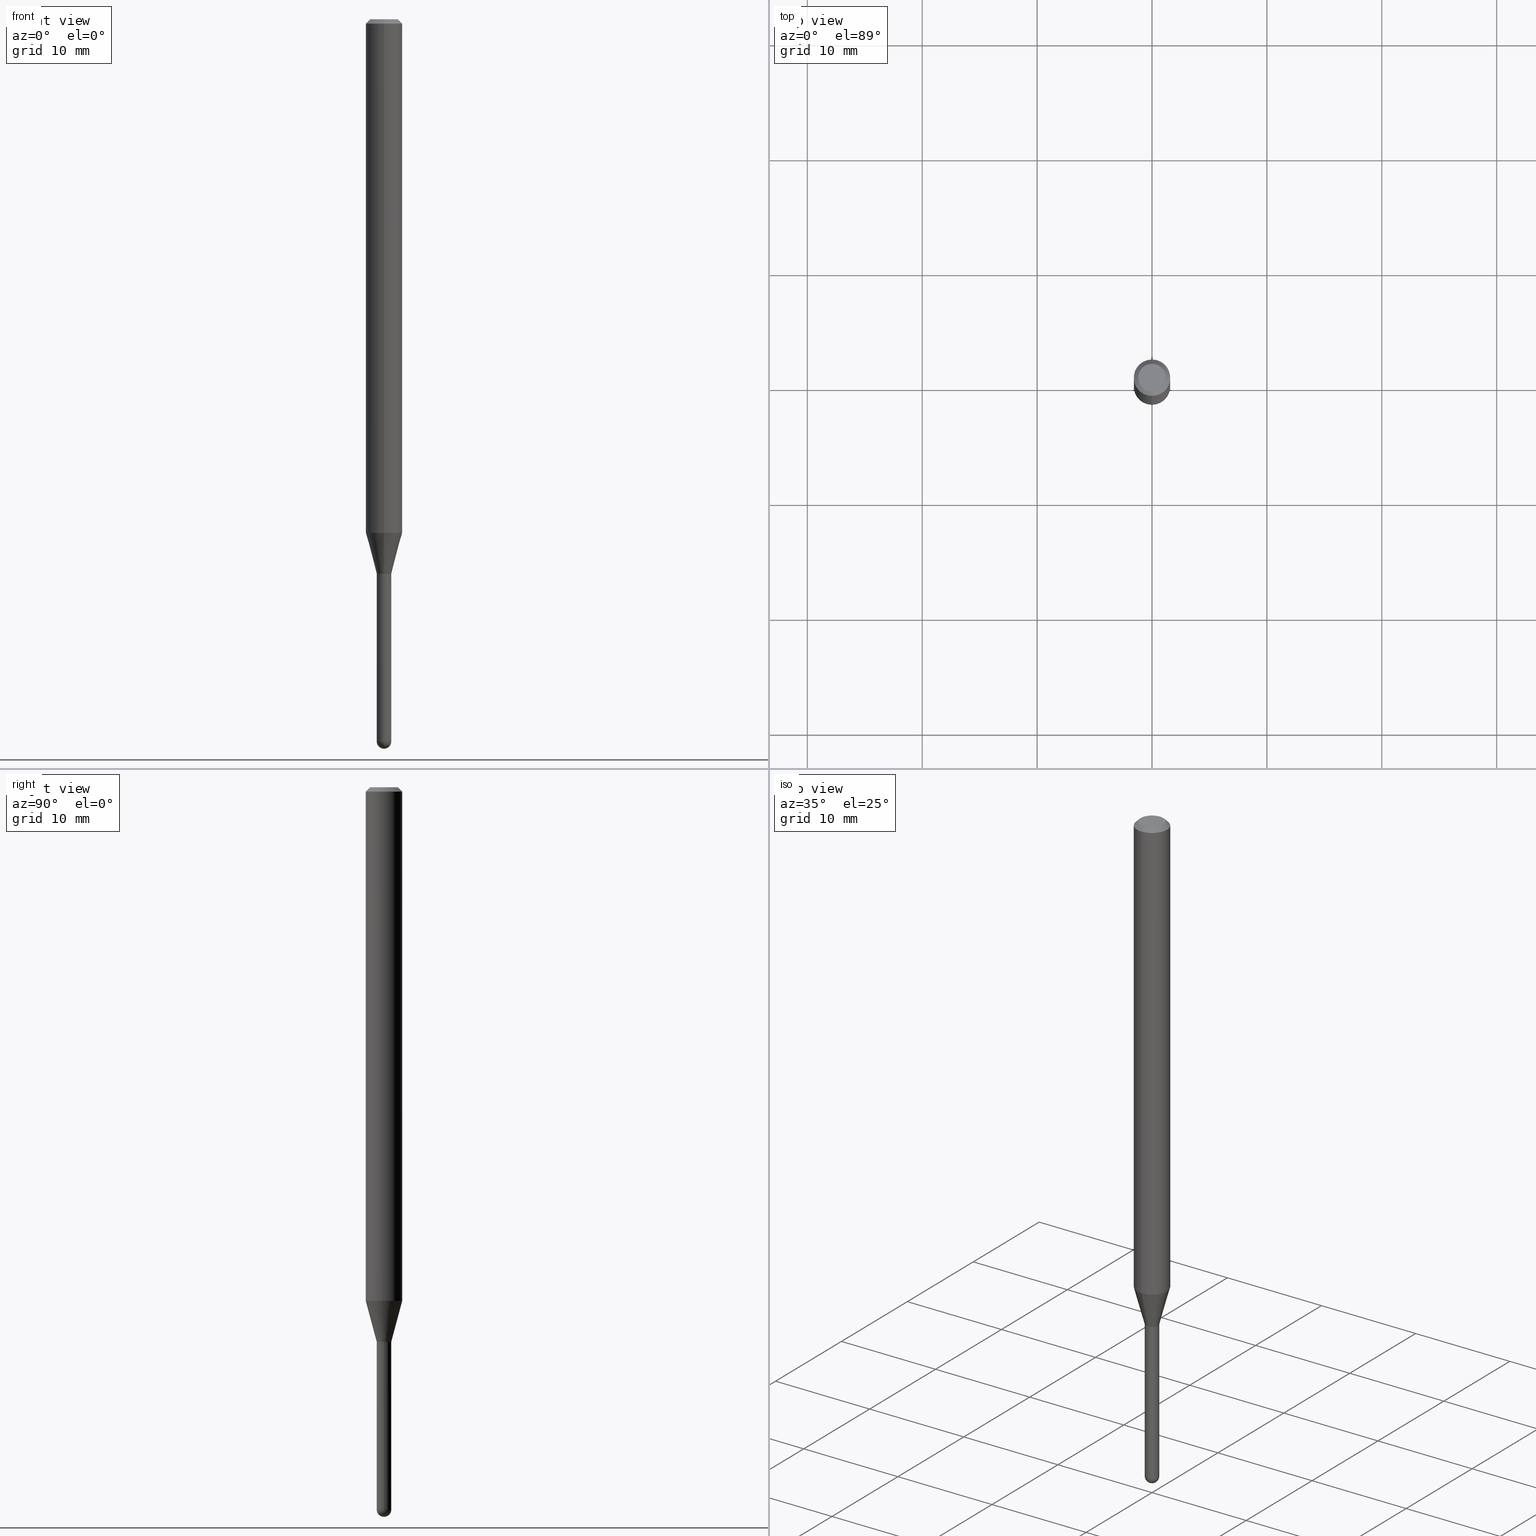
[diagram: canonical four-view strip — front | top / right | iso, engineering-drawing reading convention]
A machine part, canonical four-view strip (front | top / right | iso — engineering-drawing reading convention). The complete STEP part file that produces these views, byte-faithful:
ISO-10303-21;
HEADER;
FILE_DESCRIPTION (( 'STEP AP203' ),
    '1' );
FILE_NAME ('01565.STEP',
    '2024-03-07T19:40:07',
    ( '' ),
    ( '' ),
    'SwSTEP 2.0',
    'SolidWorks 2023',
    '' );
FILE_SCHEMA (( 'CONFIG_CONTROL_DESIGN' ));
ENDSEC;

DATA;
#1 = AXIS2_PLACEMENT_3D ( 'NONE', #136, #431, #210 ) ;
#2 = ORIENTED_EDGE ( 'NONE', *, *, #14, .F. ) ;
#3 = VERTEX_POINT ( 'NONE', #57 ) ;
#4 = EDGE_CURVE ( 'NONE', #310, #491, #73, .T. ) ;
#5 = EDGE_LOOP ( 'NONE', ( #341, #94, #170, #64 ) ) ;
#6 = EDGE_CURVE ( 'NONE', #398, #232, #460, .T. ) ;
#7 = CARTESIAN_POINT ( 'NONE',  ( 6.050397379585265558E-29, -8.644477930634654356E-15, -2.475000000000000089 ) ) ;
#8 = MANIFOLD_SOLID_BREP ( 'Body-Move/Copy2[1]', #276 ) ;
#9 = ORIENTED_EDGE ( 'NONE', *, *, #414, .F. ) ;
#10 = CARTESIAN_POINT ( 'NONE',  ( 6.052535295308213750E-29, -8.641416313636786609E-15, -2.475000000000000089 ) ) ;
#11 = DIRECTION ( 'NONE',  ( -2.445445075219074648E-29, 3.491515322937228955E-15, 1.000000000000000000 ) ) ;
#12 = ORIENTED_EDGE ( 'NONE', *, *, #183, .T. ) ;
#13 = DIRECTION ( 'NONE',  ( -6.982962677686265922E-15, -1.000000000000000000, 3.483106191921935554E-15 ) ) ;
#14 = EDGE_CURVE ( 'NONE', #3, #411, #352, .T. ) ;
#15 = ORIENTED_EDGE ( 'NONE', *, *, #24, .F. ) ;
#16 = DIRECTION ( 'NONE',  ( -2.445445075219074648E-29, 3.491515322937228561E-15, 1.000000000000000000 ) ) ;
#17 = DIRECTION ( 'NONE',  ( 2.445445075219074648E-29, -3.491515322937228955E-15, -1.000000000000000000 ) ) ;
#18 = CIRCLE ( 'NONE', #312, 0.04749999999999999362 ) ;
#19 = ORIENTED_EDGE ( 'NONE', *, *, #428, .F. ) ;
#20 =( NAMED_UNIT ( * ) SI_UNIT ( $, .STERADIAN. ) SOLID_ANGLE_UNIT ( ) );
#21 = VECTOR ( 'NONE', #373, 39.37007874015748143 ) ;
#22 = CARTESIAN_POINT ( 'NONE',  ( -1.710825856032670439E-16, -0.02450000000000663453, -1.900000000000000133 ) ) ;
#23 = ORIENTED_EDGE ( 'NONE', *, *, #269, .F. ) ;
#24 = EDGE_CURVE ( 'NONE', #173, #482, #18, .T. ) ;
#25 = CARTESIAN_POINT ( 'NONE',  ( 1.758593271006709773E-16, 0.02449999999999336736, -1.900000000000000133 ) ) ;
#26 = VERTEX_POINT ( 'NONE', #335 ) ;
#27 = CYLINDRICAL_SURFACE ( 'NONE', #447, 0.02500000000000000486 ) ;
#28 = APPLICATION_PROTOCOL_DEFINITION ( 'international standard', 'config_control_design', 1994, #165 ) ;
#29 = CARTESIAN_POINT ( 'NONE',  ( 4.646345642916242448E-29, -6.633879113580735686E-15, -1.900000000000000133 ) ) ;
#30 = CARTESIAN_POINT ( 'NONE',  ( 0.000000000000000000, 0.000000000000000000, 0.000000000000000000 ) ) ;
#31 = EDGE_CURVE ( 'NONE', #124, #472, #153, .T. ) ;
#32 = CONICAL_SURFACE ( 'NONE', #263, 0.06250000000000000000, 0.7853981633974483900 ) ;
#33 = CARTESIAN_POINT ( 'NONE',  ( 0.000000000000000000, 0.000000000000000000, 0.000000000000000000 ) ) ;
#34 = EDGE_LOOP ( 'NONE', ( #278, #249, #227, #58 ) ) ;
#35 = ADVANCED_FACE ( 'NONE', ( #295 ), #291, .F. ) ;
#36 = CARTESIAN_POINT ( 'NONE',  ( 3.668167612828614459E-31, -5.237272984405846564E-17, -0.01500000000000000812 ) ) ;
#37 = CIRCLE ( 'NONE', #95, 0.02500000000000000486 ) ;
#38 = PRODUCT_DEFINITION_SHAPE ( 'NONE', 'NONE',  #184 ) ;
#39 = EDGE_CURVE ( 'NONE', #382, #307, #504, .T. ) ;
#40 = ADVANCED_FACE ( 'NONE', ( #388 ), #71, .T. ) ;
#41 = VECTOR ( 'NONE', #386, 39.37007874015748143 ) ;
#42 = ORIENTED_EDGE ( 'NONE', *, *, #209, .F. ) ;
#43 = ORIENTED_EDGE ( 'NONE', *, *, #4, .T. ) ;
#44 = DIRECTION ( 'NONE',  ( -1.807323732225381415E-15, -0.2588190451025255134, 0.9659258262890669799 ) ) ;
#45 = ORIENTED_EDGE ( 'NONE', *, *, #237, .T. ) ;
#46 = DIRECTION ( 'NONE',  ( 1.000000000000000000, -6.982962677686253300E-15, 0.000000000000000000 ) ) ;
#47 = ADVANCED_FACE ( 'NONE', ( #225 ), #421, .F. ) ;
#48 = DIRECTION ( 'NONE',  ( -7.105427357601001070E-15, -1.000000000000000000, 0.000000000000000000 ) ) ;
#49 = EDGE_LOOP ( 'NONE', ( #479, #109, #52, #160 ) ) ;
#50 = CARTESIAN_POINT ( 'NONE',  ( 2.166347736452363345E-46, -3.093030546170088735E-32, -8.858705347362141833E-18 ) ) ;
#51 = APPROVAL_ROLE ( '' ) ;
#52 = ORIENTED_EDGE ( 'NONE', *, *, #205, .T. ) ;
#53 = VECTOR ( 'NONE', #456, 39.37007874015748143 ) ;
#54 = FACE_OUTER_BOUND ( 'NONE', #120, .T. ) ;
#55 = APPROVAL_PERSON_ORGANIZATION ( #194, #157, #451 ) ;
#56 = COORDINATED_UNIVERSAL_TIME_OFFSET ( 5, 0, .BEHIND. ) ;
#57 = CARTESIAN_POINT ( 'NONE',  ( 3.108624468950883822E-16, 0.02499999999999329148, -1.900000000000000133 ) ) ;
#58 = ORIENTED_EDGE ( 'NONE', *, *, #430, .F. ) ;
#59 = DIRECTION ( 'NONE',  ( -2.445445075219074648E-29, 3.491515322937228955E-15, 1.000000000000000000 ) ) ;
#60 = CARTESIAN_POINT ( 'NONE',  ( -4.287811248607203282E-16, -0.06250000000000005551, -0.01499999999999979128 ) ) ;
#61 = ORIENTED_EDGE ( 'NONE', *, *, #323, .F. ) ;
#62 = CC_DESIGN_PERSON_AND_ORGANIZATION_ASSIGNMENT ( #507, #158, ( #147 ) ) ;
#63 = FACE_OUTER_BOUND ( 'NONE', #49, .T. ) ;
#64 = ORIENTED_EDGE ( 'NONE', *, *, #205, .F. ) ;
#65 = AXIS2_PLACEMENT_3D ( 'NONE', #29, #233, #303 ) ;
#66 = CARTESIAN_POINT ( 'NONE',  ( 6.052535295308213750E-29, -8.641416313636786609E-15, -2.475000000000000089 ) ) ;
#67 = CARTESIAN_POINT ( 'NONE',  ( -1.776356839399643140E-16, -0.02500000000000861256, -2.475000000000000089 ) ) ;
#68 = PERSON_AND_ORGANIZATION ( #489, #105 ) ;
#69 = DIRECTION ( 'NONE',  ( -2.445445075219074648E-29, 3.491515322937228955E-15, 1.000000000000000000 ) ) ;
#70 = EDGE_CURVE ( 'NONE', #26, #231, #83, .T. ) ;
#71 = CYLINDRICAL_SURFACE ( 'NONE', #201, 0.06250000000000000000 ) ;
#72 = DIRECTION ( 'NONE',  ( -2.445468806185136597E-29, 3.491481338843145583E-15, 1.000000000000000000 ) ) ;
#73 = CIRCLE ( 'NONE', #337, 0.02499999999999993894 ) ;
#74 = CIRCLE ( 'NONE', #134, 0.02500000000000000486 ) ;
#75 = DIRECTION ( 'NONE',  ( -2.445445075219074648E-29, 3.491515322937228561E-15, 1.000000000000000000 ) ) ;
#76 = CARTESIAN_POINT ( 'NONE',  ( 4.646345642916242448E-29, -6.633879113580735686E-15, -1.900000000000000133 ) ) ;
#77 = AXIS2_PLACEMENT_3D ( 'NONE', #36, #508, #462 ) ;
#78 = PERSON_AND_ORGANIZATION ( #489, #105 ) ;
#79 = ADVANCED_FACE ( 'NONE', ( #195 ), #372, .T. ) ;
#80 = EDGE_CURVE ( 'NONE', #173, #26, #453, .T. ) ;
#81 = COORDINATED_UNIVERSAL_TIME_OFFSET ( 5, 0, .BEHIND. ) ;
#82 = CARTESIAN_POINT ( 'NONE',  ( 4.646345642916242448E-29, -6.633879113580735686E-15, -1.900000000000000133 ) ) ;
#83 = CIRCLE ( 'NONE', #112, 0.06250000000000000000 ) ;
#84 = DATE_TIME_ROLE ( 'classification_date' ) ;
#85 = EDGE_LOOP ( 'NONE', ( #370, #377, #475, #99 ) ) ;
#86 = CARTESIAN_POINT ( 'NONE',  ( -0.02500000000000000486, -7.459979744779357409E-15, -2.475000000000000089 ) ) ;
#87 = ORIENTED_EDGE ( 'NONE', *, *, #271, .F. ) ;
#88 = ORIENTED_EDGE ( 'NONE', *, *, #209, .T. ) ;
#89 = DIRECTION ( 'NONE',  ( -2.445445075219074648E-29, 3.491515322937228955E-15, 1.000000000000000000 ) ) ;
#90 = CARTESIAN_POINT ( 'NONE',  ( 6.050397379585265558E-29, -8.644477930634654356E-15, -2.475000000000000089 ) ) ;
#91 = CARTESIAN_POINT ( 'NONE',  ( 6.052535295308213750E-29, -8.641416313636786609E-15, -2.475000000000000089 ) ) ;
#92 = AXIS2_PLACEMENT_3D ( 'NONE', #326, #364, #253 ) ;
#93 = CALENDAR_DATE ( 2024, 7, 3 ) ;
#94 = ORIENTED_EDGE ( 'NONE', *, *, #503, .T. ) ;
#95 = AXIS2_PLACEMENT_3D ( 'NONE', #66, #450, #101 ) ;
#96 = CARTESIAN_POINT ( 'NONE',  ( 6.112603057601368517E-29, -8.730234155606798816E-15, -2.500000000000000000 ) ) ;
#97 = DESIGN_CONTEXT ( 'detailed design', #151, 'design' ) ;
#98 =( CONVERSION_BASED_UNIT ( 'INCH', #449 ) LENGTH_UNIT ( ) NAMED_UNIT ( #441 ) );
#99 = ORIENTED_EDGE ( 'NONE', *, *, #365, .F. ) ;
#100 = ADVANCED_FACE ( 'NONE', ( #63 ), #187, .T. ) ;
#101 = DIRECTION ( 'NONE',  ( 1.000000000000000000, -6.982962677686253300E-15, 0.000000000000000000 ) ) ;
#102 = DIRECTION ( 'NONE',  ( -4.851104656540964275E-15, -0.7071067811865500152, -0.7071067811865450192 ) ) ;
#103 = DIRECTION ( 'NONE',  ( 6.982962677686265922E-15, 1.000000000000000000, -3.491515322937228561E-15 ) ) ;
#104 = VECTOR ( 'NONE', #510, 39.37007874015748143 ) ;
#105 = ORGANIZATION ( 'UNSPECIFIED', 'UNSPECIFIED', '' ) ;
#106 = MECHANICAL_CONTEXT ( 'NONE', #165, 'mechanical' ) ;
#107 = ADVANCED_FACE ( 'NONE', ( #296 ), #32, .T. ) ;
#108 = LINE ( 'NONE', #267, #320 ) ;
#109 = ORIENTED_EDGE ( 'NONE', *, *, #414, .T. ) ;
#110 = DIRECTION ( 'NONE',  ( 0.000000000000000000, 0.000000000000000000, 1.000000000000000000 ) ) ;
#111 = DIRECTION ( 'NONE',  ( -6.982962677686265922E-15, -1.000000000000000000, 3.483106191921935554E-15 ) ) ;
#112 = AXIS2_PLACEMENT_3D ( 'NONE', #148, #193, #111 ) ;
#113 = CARTESIAN_POINT ( 'NONE',  ( -1.745740669421102729E-16, -0.02500000000000664538, -1.899500000000000410 ) ) ;
#114 = DIRECTION ( 'NONE',  ( -2.445445075219074648E-29, 3.491515322937228561E-15, 1.000000000000000000 ) ) ;
#115 = DIRECTION ( 'NONE',  ( -2.445445075219074648E-29, 3.491515322937228955E-15, 1.000000000000000000 ) ) ;
#116 = CIRCLE ( 'NONE', #409, 0.02500000000000000486 ) ;
#117 = EDGE_CURVE ( 'NONE', #324, #484, #277, .T. ) ;
#118 = CALENDAR_DATE ( 2024, 7, 3 ) ;
#119 = CC_DESIGN_PERSON_AND_ORGANIZATION_ASSIGNMENT ( #177, #248, ( #506 ) ) ;
#120 = EDGE_LOOP ( 'NONE', ( #325, #43, #403, #405 ) ) ;
#121 = DIRECTION ( 'NONE',  ( -1.000000000000000000, 7.105427357601001070E-15, -4.926315508542082329E-29 ) ) ;
#122 = FACE_OUTER_BOUND ( 'NONE', #481, .T. ) ;
#123 = AXIS2_PLACEMENT_3D ( 'NONE', #346, #416, #420 ) ;
#124 = VERTEX_POINT ( 'NONE', #300 ) ;
#125 = DIRECTION ( 'NONE',  ( -2.445468806185136877E-29, 3.491481338843145188E-15, 1.000000000000000000 ) ) ;
#126 = EDGE_CURVE ( 'NONE', #3, #472, #229, .T. ) ;
#127 = PRODUCT_RELATED_PRODUCT_CATEGORY ( 'detail', '', ( #359 ) ) ;
#128 = ORIENTED_EDGE ( 'NONE', *, *, #237, .F. ) ;
#129 = ORIENTED_EDGE ( 'NONE', *, *, #163, .T. ) ;
#130 = DIRECTION ( 'NONE',  ( -2.445468806185136597E-29, 3.491481338843145583E-15, 1.000000000000000000 ) ) ;
#131 = COORDINATED_UNIVERSAL_TIME_OFFSET ( 5, 0, .BEHIND. ) ;
#132 = DIRECTION ( 'NONE',  ( -6.982962677686265922E-15, -1.000000000000000000, 0.000000000000000000 ) ) ;
#133 = LINE ( 'NONE', #477, #387 ) ;
#134 = AXIS2_PLACEMENT_3D ( 'NONE', #10, #179, #196 ) ;
#135 = LOCAL_TIME ( 14, 40, 7.000000000000000000, #131 ) ;
#136 = CARTESIAN_POINT ( 'NONE',  ( 0.000000000000000000, 0.000000000000000000, 0.000000000000000000 ) ) ;
#137 = EDGE_CURVE ( 'NONE', #286, #382, #37, .T. ) ;
#138 = SHAPE_DEFINITION_REPRESENTATION ( #38, #391 ) ;
#139 = DIRECTION ( 'NONE',  ( 1.000000000000000000, -6.982962677686254878E-15, 0.000000000000000000 ) ) ;
#140 = EDGE_LOOP ( 'NONE', ( #185, #452 ) ) ;
#141 = DIRECTION ( 'NONE',  ( -1.000000000000000000, 6.982962677686266711E-15, -4.883557194083112901E-29 ) ) ;
#142 = CARTESIAN_POINT ( 'NONE',  ( 4.440892098501054119E-16, 0.06249999999999383826, -1.760048094716172074 ) ) ;
#143 = DIRECTION ( 'NONE',  ( -6.982962677686265922E-15, -1.000000000000000000, 3.491515322937228955E-15 ) ) ;
#144 = CARTESIAN_POINT ( 'NONE',  ( 4.646345642916242448E-29, -6.633879113580735686E-15, -1.900000000000000133 ) ) ;
#145 = AXIS2_PLACEMENT_3D ( 'NONE', #217, #438, #182 ) ;
#146 = VERTEX_POINT ( 'NONE', #22 ) ;
#147 = PRODUCT_DEFINITION_FORMATION_WITH_SPECIFIED_SOURCE ( 'ANY', '', #359, .NOT_KNOWN. ) ;
#148 = CARTESIAN_POINT ( 'NONE',  ( 3.668167612828614459E-31, -5.237272984405846564E-17, -0.01500000000000000812 ) ) ;
#149 = LINE ( 'NONE', #308, #21 ) ;
#150 = CARTESIAN_POINT ( 'NONE',  ( 0.000000000000000000, 0.000000000000000000, 0.000000000000000000 ) ) ;
#151 = APPLICATION_CONTEXT ( 'configuration controlled 3d designs of mechanical parts and assemblies' ) ;
#152 = DIRECTION ( 'NONE',  ( -2.445445075219074648E-29, 3.491515322937228561E-15, 1.000000000000000000 ) ) ;
#153 = CIRCLE ( 'NONE', #432, 0.06250000000000000000 ) ;
#154 = ORIENTED_EDGE ( 'NONE', *, *, #39, .T. ) ;
#155 = ADVANCED_FACE ( 'NONE', ( #265 ), #342, .T. ) ;
#156 = AXIS2_PLACEMENT_3D ( 'NONE', #208, #220, #186 ) ;
#157 = APPROVAL ( #498, 'UNSPECIFIED' ) ;
#158 = PERSON_AND_ORGANIZATION_ROLE ( 'creator' ) ;
#159 = LINE ( 'NONE', #464, #423 ) ;
#160 = ORIENTED_EDGE ( 'NONE', *, *, #6, .F. ) ;
#161 = CARTESIAN_POINT ( 'NONE',  ( 4.440892098501060035E-16, 0.06249999999999995837, -0.01500000000000022669 ) ) ;
#162 = ORIENTED_EDGE ( 'NONE', *, *, #14, .T. ) ;
#163 = EDGE_CURVE ( 'NONE', #232, #398, #321, .T. ) ;
#164 = APPROVAL_STATUS ( 'not_yet_approved' ) ;
#165 = APPLICATION_CONTEXT ( 'configuration controlled 3d designs of mechanical parts and assemblies' ) ;
#166 = LOCAL_TIME ( 14, 40, 7.000000000000000000, #56 ) ;
#167 = ORIENTED_EDGE ( 'NONE', *, *, #24, .T. ) ;
#168 = CC_DESIGN_APPROVAL ( #157, ( #184 ) ) ;
#169 = ORIENTED_EDGE ( 'NONE', *, *, #355, .T. ) ;
#170 = ORIENTED_EDGE ( 'NONE', *, *, #163, .F. ) ;
#171 = VERTEX_POINT ( 'NONE', #25 ) ;
#172 = DIRECTION ( 'NONE',  ( -2.445445075219074648E-29, 3.491515322937228955E-15, 1.000000000000000000 ) ) ;
#173 = VERTEX_POINT ( 'NONE', #499 ) ;
#174 = ORIENTED_EDGE ( 'NONE', *, *, #511, .F. ) ;
#175 = LINE ( 'NONE', #332, #505 ) ;
#176 = CIRCLE ( 'NONE', #366, 0.02499999999999993894 ) ;
#177 = PERSON_AND_ORGANIZATION ( #489, #105 ) ;
#178 = CARTESIAN_POINT ( 'NONE',  ( 4.304100945372378019E-29, -6.145234891807989298E-15, -1.760048094716171851 ) ) ;
#179 = DIRECTION ( 'NONE',  ( -2.445468806185136597E-29, 3.491481338843145583E-15, 1.000000000000000000 ) ) ;
#180 = DIRECTION ( 'NONE',  ( -2.445445075219074648E-29, 3.491515322937228955E-15, 1.000000000000000000 ) ) ;
#181 = ORIENTED_EDGE ( 'NONE', *, *, #393, .T. ) ;
#182 = DIRECTION ( 'NONE',  ( 6.982962677686266711E-15, 1.000000000000000000, 0.000000000000000000 ) ) ;
#183 = EDGE_CURVE ( 'NONE', #472, #124, #245, .T. ) ;
#184 = PRODUCT_DEFINITION ( 'UNKNOWN', '', #147, #97 ) ;
#185 = ORIENTED_EDGE ( 'NONE', *, *, #511, .T. ) ;
#186 = DIRECTION ( 'NONE',  ( -6.982962677686265922E-15, -1.000000000000000000, 0.000000000000000000 ) ) ;
#187 = CONICAL_SURFACE ( 'NONE', #65, 0.02450000000000000094, 0.7853981633974739252 ) ;
#188 = DIRECTION ( 'NONE',  ( 6.982962677686265922E-15, 1.000000000000000000, -3.483106191921935554E-15 ) ) ;
#189 = AXIS2_PLACEMENT_3D ( 'NONE', #270, #72, #236 ) ;
#190 = EDGE_LOOP ( 'NONE', ( #23, #87, #45, #129 ) ) ;
#191 = ORIENTED_EDGE ( 'NONE', *, *, #252, .F. ) ;
#192 = CARTESIAN_POINT ( 'NONE',  ( 3.316907271900976096E-16, 0.04749999999999999362, -1.702763305131994504E-16 ) ) ;
#193 = DIRECTION ( 'NONE',  ( -2.445445075219074648E-29, 3.491515322937228955E-15, 1.000000000000000000 ) ) ;
#194 = PERSON_AND_ORGANIZATION ( #489, #105 ) ;
#195 = FACE_OUTER_BOUND ( 'NONE', #261, .T. ) ;
#196 = DIRECTION ( 'NONE',  ( 1.000000000000000000, -6.982962677686253300E-15, 0.000000000000000000 ) ) ;
#197 = CONICAL_SURFACE ( 'NONE', #92, 0.02450000000000000094, 0.7853981633974739252 ) ;
#198 = CARTESIAN_POINT ( 'NONE',  ( 4.440892098500625669E-16, 0.06250000000000000000, -2.182197076835768097E-16 ) ) ;
#199 = PERSON_AND_ORGANIZATION ( #489, #105 ) ;
#200 = LINE ( 'NONE', #351, #104 ) ;
#201 = AXIS2_PLACEMENT_3D ( 'NONE', #33, #69, #143 ) ;
#202 = ORIENTED_EDGE ( 'NONE', *, *, #493, .T. ) ;
#203 = AXIS2_PLACEMENT_3D ( 'NONE', #76, #115, #272 ) ;
#204 = EDGE_LOOP ( 'NONE', ( #154, #260, #174, #191, #495 ) ) ;
#205 = EDGE_CURVE ( 'NONE', #146, #232, #108, .T. ) ;
#206 = AXIS2_PLACEMENT_3D ( 'NONE', #192, #500, #103 ) ;
#207 = EDGE_LOOP ( 'NONE', ( #2, #331, #467, #128 ) ) ;
#208 = CARTESIAN_POINT ( 'NONE',  ( 4.646345642916242448E-29, -6.633879113580735686E-15, -1.900000000000000133 ) ) ;
#209 = EDGE_CURVE ( 'NONE', #472, #231, #424, .T. ) ;
#210 = DIRECTION ( 'NONE',  ( 1.000000000000000000, -6.982962677686267499E-15, 4.876176775795936353E-29 ) ) ;
#211 = DIRECTION ( 'NONE',  ( -6.982962677686266711E-15, -1.000000000000000000, 3.491515322937229350E-15 ) ) ;
#212 = MANIFOLD_SOLID_BREP ( 'Body-Move/Copy2[2]', #240 ) ;
#213 = DIRECTION ( 'NONE',  ( -6.982962677686265922E-15, -1.000000000000000000, 0.000000000000000000 ) ) ;
#214 = AXIS2_PLACEMENT_3D ( 'NONE', #258, #16, #399 ) ;
#215 = CC_DESIGN_APPROVAL ( #317, ( #506 ) ) ;
#216 = ORIENTED_EDGE ( 'NONE', *, *, #70, .F. ) ;
#217 = CARTESIAN_POINT ( 'NONE',  ( 6.050397379585265558E-29, -8.644477930634654356E-15, -2.475000000000000089 ) ) ;
#218 = ADVANCED_FACE ( 'NONE', ( #354 ), #328, .T. ) ;
#219 = CARTESIAN_POINT ( 'NONE',  ( 1.745740669422031119E-16, 0.02499999999999336781, -1.900000000000000133 ) ) ;
#220 = DIRECTION ( 'NONE',  ( -2.445445075219074648E-29, 3.491515322937228955E-15, 1.000000000000000000 ) ) ;
#221 = CARTESIAN_POINT ( 'NONE',  ( 3.668167612828614459E-31, -5.237272984405846564E-17, -0.01500000000000000812 ) ) ;
#222 = ORIENTED_EDGE ( 'NONE', *, *, #117, .F. ) ;
#223 = AXIS2_PLACEMENT_3D ( 'NONE', #219, #242, #478 ) ;
#224 = CIRCLE ( 'NONE', #273, 0.06250000000000000000 ) ;
#225 = FACE_OUTER_BOUND ( 'NONE', #207, .T. ) ;
#226 = APPROVAL_PERSON_ORGANIZATION ( #400, #317, #51 ) ;
#227 = ORIENTED_EDGE ( 'NONE', *, *, #137, .F. ) ;
#228 = PLANE ( 'NONE',  #206 ) ;
#229 = LINE ( 'NONE', #376, #53 ) ;
#230 = CARTESIAN_POINT ( 'NONE',  ( 4.364351673553919652E-16, 0.06249999999999995143, -0.01500000000000022669 ) ) ;
#231 = VERTEX_POINT ( 'NONE', #161 ) ;
#232 = VERTEX_POINT ( 'NONE', #113 ) ;
#233 = DIRECTION ( 'NONE',  ( -2.445445075219074648E-29, 3.491515322937228955E-15, 1.000000000000000000 ) ) ;
#234 = DIRECTION ( 'NONE',  ( -6.982962677686265922E-15, -1.000000000000000000, 0.000000000000000000 ) ) ;
#235 = AXIS2_PLACEMENT_3D ( 'NONE', #362, #406, #213 ) ;
#236 = DIRECTION ( 'NONE',  ( 1.000000000000000000, -6.982962677686254878E-15, 0.000000000000000000 ) ) ;
#237 = EDGE_CURVE ( 'NONE', #411, #232, #427, .T. ) ;
#238 = DATE_AND_TIME ( #118, #418 ) ;
#239 = FACE_OUTER_BOUND ( 'NONE', #390, .T. ) ;
#240 = CLOSED_SHELL ( 'NONE', ( #47, #380, #218, #79, #465, #279, #40, #107, #442, #395, #100, #316 ) ) ;
#241 = AXIS2_PLACEMENT_3D ( 'NONE', #50, #89, #360 ) ;
#242 = DIRECTION ( 'NONE',  ( 2.438088387897960049E-29, -3.491481338843145188E-15, -1.000000000000000000 ) ) ;
#243 = DIRECTION ( 'NONE',  ( -2.445445075219074648E-29, 3.491515322937228955E-15, 1.000000000000000000 ) ) ;
#244 = AXIS2_PLACEMENT_3D ( 'NONE', #281, #246, #437 ) ;
#245 = CIRCLE ( 'NONE', #353, 0.06250000000000000000 ) ;
#246 = DIRECTION ( 'NONE',  ( -2.445445075219074648E-29, 3.491515322937228955E-15, 1.000000000000000000 ) ) ;
#247 = PLANE ( 'NONE',  #214 ) ;
#248 = PERSON_AND_ORGANIZATION_ROLE ( 'classification_officer' ) ;
#249 = ORIENTED_EDGE ( 'NONE', *, *, #288, .T. ) ;
#250 = ORIENTED_EDGE ( 'NONE', *, *, #306, .F. ) ;
#251 = DIRECTION ( 'NONE',  ( -6.982962677686265922E-15, -1.000000000000000000, 0.000000000000000000 ) ) ;
#252 = EDGE_CURVE ( 'NONE', #286, #484, #200, .T. ) ;
#253 = DIRECTION ( 'NONE',  ( -6.982962677686265922E-15, -1.000000000000000000, 0.000000000000000000 ) ) ;
#254 = VECTOR ( 'NONE', #75, 39.37007874015748143 ) ;
#255 = LOCAL_TIME ( 14, 40, 7.000000000000000000, #356 ) ;
#256 = DATE_AND_TIME ( #93, #135 ) ;
#257 = EDGE_LOOP ( 'NONE', ( #285, #167 ) ) ;
#258 = CARTESIAN_POINT ( 'NONE',  ( 4.646345642916242448E-29, -6.633879113580735686E-15, -1.900000000000000133 ) ) ;
#259 = CALENDAR_DATE ( 2024, 7, 3 ) ;
#260 = ORIENTED_EDGE ( 'NONE', *, *, #323, .T. ) ;
#261 = EDGE_LOOP ( 'NONE', ( #401, #88, #216, #429 ) ) ;
#262 = DIRECTION ( 'NONE',  ( -6.982962677686265922E-15, -1.000000000000000000, 3.491515322937228955E-15 ) ) ;
#263 = AXIS2_PLACEMENT_3D ( 'NONE', #221, #17, #188 ) ;
#264 = CC_DESIGN_PERSON_AND_ORGANIZATION_ASSIGNMENT ( #463, #274, ( #147 ) ) ;
#265 = FACE_OUTER_BOUND ( 'NONE', #34, .T. ) ;
#266 = LINE ( 'NONE', #230, #41 ) ;
#267 = CARTESIAN_POINT ( 'NONE',  ( -1.710825856032670439E-16, -0.02450000000000663453, -1.900000000000000133 ) ) ;
#268 = DIRECTION ( 'NONE',  ( -4.937700262164674260E-15, -0.7071067811865632269, 0.7071067811865319186 ) ) ;
#269 = EDGE_CURVE ( 'NONE', #3, #398, #159, .T. ) ;
#270 = CARTESIAN_POINT ( 'NONE',  ( 4.646390731751759982E-29, -6.633814543801977041E-15, -1.900000000000000133 ) ) ;
#271 = EDGE_CURVE ( 'NONE', #411, #3, #394, .T. ) ;
#272 = DIRECTION ( 'NONE',  ( -6.982962677686265922E-15, -1.000000000000000000, 0.000000000000000000 ) ) ;
#273 = AXIS2_PLACEMENT_3D ( 'NONE', #282, #172, #13 ) ;
#274 = PERSON_AND_ORGANIZATION_ROLE ( 'design_supplier' ) ;
#275 = CC_DESIGN_PERSON_AND_ORGANIZATION_ASSIGNMENT ( #78, #426, ( #184 ) ) ;
#276 = CLOSED_SHELL ( 'NONE', ( #413, #299, #35, #155, #502 ) ) ;
#277 = CIRCLE ( 'NONE', #313, 0.02500000000000000139 ) ;
#278 = ORIENTED_EDGE ( 'NONE', *, *, #4, .F. ) ;
#279 = ADVANCED_FACE ( 'NONE', ( #239 ), #476, .T. ) ;
#280 = DATE_AND_TIME ( #259, #166 ) ;
#281 = CARTESIAN_POINT ( 'NONE',  ( 4.646345642916242448E-29, -6.633879113580735686E-15, -1.900000000000000133 ) ) ;
#282 = CARTESIAN_POINT ( 'NONE',  ( 3.668167612828614459E-31, -5.237272984405846564E-17, -0.01500000000000000812 ) ) ;
#283 = AXIS2_PLACEMENT_3D ( 'NONE', #439, #333, #397 ) ;
#284 = AXIS2_PLACEMENT_3D ( 'NONE', #492, #141, #305 ) ;
#285 = ORIENTED_EDGE ( 'NONE', *, *, #306, .T. ) ;
#286 = VERTEX_POINT ( 'NONE', #408 ) ;
#287 = CARTESIAN_POINT ( 'NONE',  ( 1.776356839400703419E-16, 0.02499999999999320821, -1.899500000000000410 ) ) ;
#288 = EDGE_CURVE ( 'NONE', #310, #382, #176, .T. ) ;
#289 = CARTESIAN_POINT ( 'NONE',  ( 2.166347736452363345E-46, -3.093030546170088735E-32, -8.858705347362141833E-18 ) ) ;
#290 = CARTESIAN_POINT ( 'NONE',  ( 1.745740669422169663E-16, 0.02499999999999133124, -2.475000000000000089 ) ) ;
#291 = PLANE ( 'NONE',  #223 ) ;
#292 = SPHERICAL_SURFACE ( 'NONE', #145, 0.02499999999999993894 ) ;
#293 = AXIS2_PLACEMENT_3D ( 'NONE', #82, #243, #251 ) ;
#294 = LOCAL_TIME ( 14, 40, 7.000000000000000000, #81 ) ;
#295 = FACE_OUTER_BOUND ( 'NONE', #140, .T. ) ;
#296 = FACE_OUTER_BOUND ( 'NONE', #318, .T. ) ;
#297 = ORIENTED_EDGE ( 'NONE', *, *, #365, .T. ) ;
#298 = EDGE_LOOP ( 'NONE', ( #15, #446, #363, #315 ) ) ;
#299 = ADVANCED_FACE ( 'NONE', ( #54 ), #292, .T. ) ;
#300 = CARTESIAN_POINT ( 'NONE',  ( -4.364351673553487258E-16, -0.06250000000000616174, -1.760048094716171407 ) ) ;
#301 = CARTESIAN_POINT ( 'NONE',  ( 0.02500000000000000139, -6.808388610744133709E-15, -1.900000000000000133 ) ) ;
#302 = VECTOR ( 'NONE', #125, 39.37007874015748143 ) ;
#303 = DIRECTION ( 'NONE',  ( -6.982962677686265922E-15, -1.000000000000000000, 0.000000000000000000 ) ) ;
#304 = APPROVAL_PERSON_ORGANIZATION ( #199, #455, #319 ) ;
#305 = DIRECTION ( 'NONE',  ( 6.982962677686266711E-15, 1.000000000000000000, 0.000000000000000000 ) ) ;
#306 = EDGE_CURVE ( 'NONE', #482, #173, #454, .T. ) ;
#307 = VERTEX_POINT ( 'NONE', #86 ) ;
#308 = CARTESIAN_POINT ( 'NONE',  ( 1.740829702612709964E-16, 0.02449999999999336736, -1.900000000000000133 ) ) ;
#309 = DIRECTION ( 'NONE',  ( -2.445445075219074648E-29, 3.491515322937228955E-15, 1.000000000000000000 ) ) ;
#310 = VERTEX_POINT ( 'NONE', #96 ) ;
#311 = CC_DESIGN_PERSON_AND_ORGANIZATION_ASSIGNMENT ( #68, #392, ( #359 ) ) ;
#312 = AXIS2_PLACEMENT_3D ( 'NONE', #289, #180, #211 ) ;
#313 = AXIS2_PLACEMENT_3D ( 'NONE', #340, #488, #139 ) ;
#314 = AXIS2_PLACEMENT_3D ( 'NONE', #150, #110, #501 ) ;
#315 = ORIENTED_EDGE ( 'NONE', *, *, #493, .F. ) ;
#316 = ADVANCED_FACE ( 'NONE', ( #369 ), #473, .F. ) ;
#317 = APPROVAL ( #407, 'UNSPECIFIED' ) ;
#318 = EDGE_LOOP ( 'NONE', ( #497, #250, #202, #169 ) ) ;
#319 = APPROVAL_ROLE ( '' ) ;
#320 = VECTOR ( 'NONE', #268, 39.37007874015748143 ) ;
#321 = CIRCLE ( 'NONE', #445, 0.02499999999999992506 ) ;
#322 = DATE_AND_TIME ( #509, #255 ) ;
#323 = EDGE_CURVE ( 'NONE', #307, #324, #371, .T. ) ;
#324 = VERTEX_POINT ( 'NONE', #483 ) ;
#325 = ORIENTED_EDGE ( 'NONE', *, *, #288, .F. ) ;
#326 = CARTESIAN_POINT ( 'NONE',  ( 4.646345642916242448E-29, -6.633879113580735686E-15, -1.900000000000000133 ) ) ;
#327 = FACE_OUTER_BOUND ( 'NONE', #5, .T. ) ;
#328 = CONICAL_SURFACE ( 'NONE', #77, 0.06250000000000000000, 0.7853981633974483900 ) ;
#329 = CONICAL_SURFACE ( 'NONE', #347, 0.02499999999999992506, 0.2617993877991578455 ) ;
#330 = DIRECTION ( 'NONE',  ( -6.982962677686265922E-15, -1.000000000000000000, 4.370956789862821150E-15 ) ) ;
#331 = ORIENTED_EDGE ( 'NONE', *, *, #269, .T. ) ;
#332 = CARTESIAN_POINT ( 'NONE',  ( -1.745740669421096812E-16, -0.02500000000000655864, -1.900000000000000133 ) ) ;
#333 = DIRECTION ( 'NONE',  ( -2.445468806185136597E-29, 3.491481338843145583E-15, 1.000000000000000000 ) ) ;
#334 = DIRECTION ( 'NONE',  ( -6.982962677686265922E-15, -1.000000000000000000, 3.491515322937229350E-15 ) ) ;
#335 = CARTESIAN_POINT ( 'NONE',  ( -4.364351673553912750E-16, -0.06250000000000005551, -0.01499999999999979128 ) ) ;
#336 = CARTESIAN_POINT ( 'NONE',  ( -1.745740669421096812E-16, -0.02500000000000655864, -1.900000000000000133 ) ) ;
#337 = AXIS2_PLACEMENT_3D ( 'NONE', #90, #121, #48 ) ;
#338 = CIRCLE ( 'NONE', #235, 0.02450000000000000094 ) ;
#339 = SECURITY_CLASSIFICATION_LEVEL ( 'unclassified' ) ;
#340 = CARTESIAN_POINT ( 'NONE',  ( 4.646390731751759982E-29, -6.633814543801977041E-15, -1.900000000000000133 ) ) ;
#341 = ORIENTED_EDGE ( 'NONE', *, *, #428, .T. ) ;
#342 = SPHERICAL_SURFACE ( 'NONE', #284, 0.02499999999999993894 ) ;
#343 = CARTESIAN_POINT ( 'NONE',  ( 4.304100945372378019E-29, -6.145234891807989298E-15, -1.760048094716171851 ) ) ;
#344 = DIRECTION ( 'NONE',  ( -2.445468806185136597E-29, 3.491481338843145583E-15, 1.000000000000000000 ) ) ;
#345 = EDGE_CURVE ( 'NONE', #307, #491, #116, .T. ) ;
#346 = CARTESIAN_POINT ( 'NONE',  ( 0.000000000000000000, 0.000000000000000000, 0.000000000000000000 ) ) ;
#347 = AXIS2_PLACEMENT_3D ( 'NONE', #144, #378, #234 ) ;
#348 = DIRECTION ( 'NONE',  ( 1.000000000000000000, -6.982962677686267499E-15, 4.876176775795936353E-29 ) ) ;
#349 =( LENGTH_UNIT ( ) NAMED_UNIT ( * ) SI_UNIT ( $, .METRE. ) );
#350 = APPROVAL_DATE_TIME ( #238, #455 ) ;
#351 = CARTESIAN_POINT ( 'NONE',  ( 0.02500000000000000486, -1.745740669421567171E-16, 1.219044193948984299E-30 ) ) ;
#352 = CIRCLE ( 'NONE', #244, 0.02499999999999992506 ) ;
#353 = AXIS2_PLACEMENT_3D ( 'NONE', #343, #458, #494 ) ;
#354 = FACE_OUTER_BOUND ( 'NONE', #298, .T. ) ;
#355 = EDGE_CURVE ( 'NONE', #231, #26, #224, .T. ) ;
#356 = COORDINATED_UNIVERSAL_TIME_OFFSET ( 5, 0, .BEHIND. ) ;
#357 = CIRCLE ( 'NONE', #293, 0.02450000000000000094 ) ;
#358 =( GEOMETRIC_REPRESENTATION_CONTEXT ( 3 ) GLOBAL_UNCERTAINTY_ASSIGNED_CONTEXT ( ( #436 ) ) GLOBAL_UNIT_ASSIGNED_CONTEXT ( ( #98, #490, #20 ) ) REPRESENTATION_CONTEXT ( 'NONE', 'WORKASPACE' ) );
#359 = PRODUCT ( '01565', '01565', '', ( #106 ) ) ;
#360 = DIRECTION ( 'NONE',  ( -6.982962677686266711E-15, -1.000000000000000000, 3.491515322937229350E-15 ) ) ;
#361 = ORIENTED_EDGE ( 'NONE', *, *, #252, .T. ) ;
#362 = CARTESIAN_POINT ( 'NONE',  ( 4.646345642916242448E-29, -6.633879113580735686E-15, -1.900000000000000133 ) ) ;
#363 = ORIENTED_EDGE ( 'NONE', *, *, #70, .T. ) ;
#364 = DIRECTION ( 'NONE',  ( -2.445445075219074648E-29, 3.491515322937228955E-15, 1.000000000000000000 ) ) ;
#365 = EDGE_CURVE ( 'NONE', #411, #124, #175, .T. ) ;
#366 = AXIS2_PLACEMENT_3D ( 'NONE', #7, #412, #480 ) ;
#367 = CC_DESIGN_APPROVAL ( #455, ( #147 ) ) ;
#368 = EDGE_LOOP ( 'NONE', ( #61, #457, #471, #361, #222 ) ) ;
#369 = FACE_OUTER_BOUND ( 'NONE', #190, .T. ) ;
#370 = ORIENTED_EDGE ( 'NONE', *, *, #271, .T. ) ;
#371 = LINE ( 'NONE', #440, #302 ) ;
#372 = CYLINDRICAL_SURFACE ( 'NONE', #469, 0.06250000000000000000 ) ;
#373 = DIRECTION ( 'NONE',  ( 5.024295867788190974E-15, 0.7071067811865681119, 0.7071067811865270336 ) ) ;
#374 = AXIS2_PLACEMENT_3D ( 'NONE', #448, #11, #132 ) ;
#375 = VECTOR ( 'NONE', #152, 39.37007874015748143 ) ;
#376 = CARTESIAN_POINT ( 'NONE',  ( 1.776356839400709582E-16, 0.02499999999999329148, -1.900000000000000133 ) ) ;
#377 = ORIENTED_EDGE ( 'NONE', *, *, #126, .T. ) ;
#378 = DIRECTION ( 'NONE',  ( -2.445445075219074648E-29, 3.491515322937228955E-15, 1.000000000000000000 ) ) ;
#379 = DIRECTION ( 'NONE',  ( -6.982962677686265922E-15, -1.000000000000000000, 0.000000000000000000 ) ) ;
#380 = ADVANCED_FACE ( 'NONE', ( #327 ), #197, .T. ) ;
#381 = FACE_OUTER_BOUND ( 'NONE', #368, .T. ) ;
#382 = VERTEX_POINT ( 'NONE', #290 ) ;
#383 = APPLICATION_PROTOCOL_DEFINITION ( 'international standard', 'config_control_design', 1994, #151 ) ;
#384 = DIRECTION ( 'NONE',  ( -2.445445075219074648E-29, 3.491515322937228955E-15, 1.000000000000000000 ) ) ;
#385 = ORIENTED_EDGE ( 'NONE', *, *, #183, .F. ) ;
#386 = DIRECTION ( 'NONE',  ( 4.937700262164548042E-15, 0.7071067811865451302, -0.7071067811865499042 ) ) ;
#387 = VECTOR ( 'NONE', #444, 39.37007874015748143 ) ;
#388 = FACE_OUTER_BOUND ( 'NONE', #443, .T. ) ;
#389 = CARTESIAN_POINT ( 'NONE',  ( 3.840629472727447874E-16, 0.04749999999999999362, -1.747056831868805136E-16 ) ) ;
#390 = EDGE_LOOP ( 'NONE', ( #459, #162, #297, #385 ) ) ;
#391 = ADVANCED_BREP_SHAPE_REPRESENTATION ( '01565', ( #8, #212, #314 ), #358 ) ;
#392 = PERSON_AND_ORGANIZATION_ROLE ( 'design_owner' ) ;
#393 = EDGE_CURVE ( 'NONE', #124, #26, #133, .T. ) ;
#394 = CIRCLE ( 'NONE', #203, 0.02499999999999992506 ) ;
#395 = ADVANCED_FACE ( 'NONE', ( #122 ), #247, .F. ) ;
#396 = CALENDAR_DATE ( 2024, 7, 3 ) ;
#397 = DIRECTION ( 'NONE',  ( 1.000000000000000000, -6.982962677686253300E-15, 0.000000000000000000 ) ) ;
#398 = VERTEX_POINT ( 'NONE', #287 ) ;
#399 = DIRECTION ( 'NONE',  ( -6.982962677686265922E-15, -1.000000000000000000, 3.491515322937228561E-15 ) ) ;
#400 = PERSON_AND_ORGANIZATION ( #489, #105 ) ;
#401 = ORIENTED_EDGE ( 'NONE', *, *, #31, .T. ) ;
#402 = FACE_OUTER_BOUND ( 'NONE', #204, .T. ) ;
#403 = ORIENTED_EDGE ( 'NONE', *, *, #345, .F. ) ;
#404 = CC_DESIGN_DATE_AND_TIME_ASSIGNMENT ( #512, #461, ( #184 ) ) ;
#405 = ORIENTED_EDGE ( 'NONE', *, *, #39, .F. ) ;
#406 = DIRECTION ( 'NONE',  ( -2.445445075219074648E-29, 3.491515322937228955E-15, 1.000000000000000000 ) ) ;
#407 = APPROVAL_STATUS ( 'not_yet_approved' ) ;
#408 = CARTESIAN_POINT ( 'NONE',  ( 0.02500000000000000486, -7.812189495661538493E-15, -2.475000000000000089 ) ) ;
#409 = AXIS2_PLACEMENT_3D ( 'NONE', #91, #130, #46 ) ;
#410 = APPROVAL_DATE_TIME ( #256, #317 ) ;
#411 = VERTEX_POINT ( 'NONE', #336 ) ;
#412 = DIRECTION ( 'NONE',  ( 1.000000000000000000, -6.982962677686265922E-15, 4.883557194083112340E-29 ) ) ;
#413 = ADVANCED_FACE ( 'NONE', ( #402 ), #486, .T. ) ;
#414 = EDGE_CURVE ( 'NONE', #171, #146, #357, .T. ) ;
#415 = CARTESIAN_POINT ( 'NONE',  ( 0.000000000000000000, 0.000000000000000000, 0.000000000000000000 ) ) ;
#416 = DIRECTION ( 'NONE',  ( -2.445445075219074648E-29, 3.491515322937228955E-15, 1.000000000000000000 ) ) ;
#417 = VECTOR ( 'NONE', #102, 39.37007874015748143 ) ;
#418 = LOCAL_TIME ( 14, 40, 7.000000000000000000, #468 ) ;
#419 = CARTESIAN_POINT ( 'NONE',  ( 4.645122920378632622E-29, -6.632133355919267639E-15, -1.899500000000000410 ) ) ;
#420 = DIRECTION ( 'NONE',  ( -6.982962677686265922E-15, -1.000000000000000000, 3.491515322937229350E-15 ) ) ;
#421 = CYLINDRICAL_SURFACE ( 'NONE', #123, 0.02499999999999992506 ) ;
#422 = FACE_OUTER_BOUND ( 'NONE', #85, .T. ) ;
#423 = VECTOR ( 'NONE', #114, 39.37007874015748143 ) ;
#424 = LINE ( 'NONE', #198, #375 ) ;
#425 = CARTESIAN_POINT ( 'NONE',  ( -1.745740669421561254E-16, -0.02499999999999992506, 8.728788307343046997E-17 ) ) ;
#426 = PERSON_AND_ORGANIZATION_ROLE ( 'creator' ) ;
#427 = LINE ( 'NONE', #425, #254 ) ;
#428 = EDGE_CURVE ( 'NONE', #146, #171, #338, .T. ) ;
#429 = ORIENTED_EDGE ( 'NONE', *, *, #393, .F. ) ;
#430 = EDGE_CURVE ( 'NONE', #491, #286, #74, .T. ) ;
#431 = DIRECTION ( 'NONE',  ( -2.445468806185136597E-29, 3.491481338843145583E-15, 1.000000000000000000 ) ) ;
#432 = AXIS2_PLACEMENT_3D ( 'NONE', #178, #485, #330 ) ;
#433 = AXIS2_PLACEMENT_3D ( 'NONE', #435, #59, #334 ) ;
#434 = ORIENTED_EDGE ( 'NONE', *, *, #355, .F. ) ;
#435 = CARTESIAN_POINT ( 'NONE',  ( 0.000000000000000000, 0.000000000000000000, 0.000000000000000000 ) ) ;
#436 = UNCERTAINTY_MEASURE_WITH_UNIT (LENGTH_MEASURE( 1.000000000000000082E-05 ), #98, 'distance_accuracy_value', 'NONE');
#437 = DIRECTION ( 'NONE',  ( -6.982962677686265922E-15, -1.000000000000000000, 0.000000000000000000 ) ) ;
#438 = DIRECTION ( 'NONE',  ( -1.000000000000000000, 6.982962677686266711E-15, -4.883557194083112901E-29 ) ) ;
#439 = CARTESIAN_POINT ( 'NONE',  ( 6.052535295308213750E-29, -8.641416313636786609E-15, -2.475000000000000089 ) ) ;
#440 = CARTESIAN_POINT ( 'NONE',  ( -0.02500000000000000486, 1.776356839400250810E-16, -1.229733772563726656E-30 ) ) ;
#441 = DIMENSIONAL_EXPONENTS ( 1.000000000000000000, 0.000000000000000000, 0.000000000000000000, 0.000000000000000000, 0.000000000000000000, 0.000000000000000000, 0.000000000000000000 ) ;
#442 = ADVANCED_FACE ( 'NONE', ( #496 ), #228, .F. ) ;
#443 = EDGE_LOOP ( 'NONE', ( #42, #12, #181, #434 ) ) ;
#444 = DIRECTION ( 'NONE',  ( -2.445445075219074648E-29, 3.491515322937228561E-15, 1.000000000000000000 ) ) ;
#445 = AXIS2_PLACEMENT_3D ( 'NONE', #419, #384, #379 ) ;
#446 = ORIENTED_EDGE ( 'NONE', *, *, #80, .T. ) ;
#447 = AXIS2_PLACEMENT_3D ( 'NONE', #30, #344, #348 ) ;
#448 = CARTESIAN_POINT ( 'NONE',  ( 4.645122920378632622E-29, -6.632133355919267639E-15, -1.899500000000000410 ) ) ;
#449 = LENGTH_MEASURE_WITH_UNIT ( LENGTH_MEASURE( 0.02539999999999999897 ), #349 );
#450 = DIRECTION ( 'NONE',  ( -2.445468806185136597E-29, 3.491481338843145583E-15, 1.000000000000000000 ) ) ;
#451 = APPROVAL_ROLE ( '' ) ;
#452 = ORIENTED_EDGE ( 'NONE', *, *, #117, .T. ) ;
#453 = LINE ( 'NONE', #60, #417 ) ;
#454 = CIRCLE ( 'NONE', #241, 0.04749999999999999362 ) ;
#455 = APPROVAL ( #164, 'UNSPECIFIED' ) ;
#456 = DIRECTION ( 'NONE',  ( 1.839019923739652380E-15, 0.2588190451025322858, 0.9659258262890650926 ) ) ;
#457 = ORIENTED_EDGE ( 'NONE', *, *, #345, .T. ) ;
#458 = DIRECTION ( 'NONE',  ( -2.445445075219074648E-29, 3.491515322937228955E-15, 1.000000000000000000 ) ) ;
#459 = ORIENTED_EDGE ( 'NONE', *, *, #126, .F. ) ;
#460 = CIRCLE ( 'NONE', #374, 0.02499999999999992506 ) ;
#461 = DATE_TIME_ROLE ( 'creation_date' ) ;
#462 = DIRECTION ( 'NONE',  ( 6.982962677686265922E-15, 1.000000000000000000, -3.483106191921935554E-15 ) ) ;
#463 = PERSON_AND_ORGANIZATION ( #489, #105 ) ;
#464 = CARTESIAN_POINT ( 'NONE',  ( 1.776356839400244893E-16, 0.02499999999999992506, -8.728788307343046997E-17 ) ) ;
#465 = ADVANCED_FACE ( 'NONE', ( #422 ), #329, .T. ) ;
#466 = APPROVAL_DATE_TIME ( #322, #157 ) ;
#467 = ORIENTED_EDGE ( 'NONE', *, *, #6, .T. ) ;
#468 = COORDINATED_UNIVERSAL_TIME_OFFSET ( 5, 0, .BEHIND. ) ;
#469 = AXIS2_PLACEMENT_3D ( 'NONE', #415, #309, #262 ) ;
#470 = CC_DESIGN_SECURITY_CLASSIFICATION ( #506, ( #147 ) ) ;
#471 = ORIENTED_EDGE ( 'NONE', *, *, #430, .T. ) ;
#472 = VERTEX_POINT ( 'NONE', #142 ) ;
#473 = CYLINDRICAL_SURFACE ( 'NONE', #433, 0.02499999999999992506 ) ;
#474 = CC_DESIGN_DATE_AND_TIME_ASSIGNMENT ( #280, #84, ( #506 ) ) ;
#475 = ORIENTED_EDGE ( 'NONE', *, *, #31, .F. ) ;
#476 = CONICAL_SURFACE ( 'NONE', #156, 0.02499999999999992506, 0.2617993877991578455 ) ;
#477 = CARTESIAN_POINT ( 'NONE',  ( -4.364351673553916201E-16, -0.06250000000000000000, 2.182197076835768097E-16 ) ) ;
#478 = DIRECTION ( 'NONE',  ( -1.000000000000000000, 6.982962677686265922E-15, -4.876176775795935793E-29 ) ) ;
#479 = ORIENTED_EDGE ( 'NONE', *, *, #503, .F. ) ;
#480 = DIRECTION ( 'NONE',  ( 6.982962677686265922E-15, 1.000000000000000000, 0.000000000000000000 ) ) ;
#481 = EDGE_LOOP ( 'NONE', ( #19, #9 ) ) ;
#482 = VERTEX_POINT ( 'NONE', #389 ) ;
#483 = CARTESIAN_POINT ( 'NONE',  ( -0.02500000000000000139, -7.459979744779357409E-15, -1.900000000000000133 ) ) ;
#484 = VERTEX_POINT ( 'NONE', #301 ) ;
#485 = DIRECTION ( 'NONE',  ( -2.445445075219074648E-29, 3.491515322937228955E-15, 1.000000000000000000 ) ) ;
#486 = CYLINDRICAL_SURFACE ( 'NONE', #1, 0.02500000000000000486 ) ;
#487 = CIRCLE ( 'NONE', #189, 0.02500000000000000139 ) ;
#488 = DIRECTION ( 'NONE',  ( -2.445468806185136597E-29, 3.491481338843145583E-15, 1.000000000000000000 ) ) ;
#489 = PERSON ( 'UNSPECIFIED', 'UNSPECIFIED', 'UNSPECIFIED', ('UNSPECIFIED'), ('UNSPECIFIED'), ('UNSPECIFIED') ) ;
#490 =( NAMED_UNIT ( * ) PLANE_ANGLE_UNIT ( ) SI_UNIT ( $, .RADIAN. ) );
#491 = VERTEX_POINT ( 'NONE', #67 ) ;
#492 = CARTESIAN_POINT ( 'NONE',  ( 6.050397379585265558E-29, -8.644477930634654356E-15, -2.475000000000000089 ) ) ;
#493 = EDGE_CURVE ( 'NONE', #482, #231, #266, .T. ) ;
#494 = DIRECTION ( 'NONE',  ( -6.982962677686265922E-15, -1.000000000000000000, 4.370956789862821150E-15 ) ) ;
#495 = ORIENTED_EDGE ( 'NONE', *, *, #137, .T. ) ;
#496 = FACE_OUTER_BOUND ( 'NONE', #257, .T. ) ;
#497 = ORIENTED_EDGE ( 'NONE', *, *, #80, .F. ) ;
#498 = APPROVAL_STATUS ( 'not_yet_approved' ) ;
#499 = CARTESIAN_POINT ( 'NONE',  ( -3.773273898774340269E-16, -0.04749999999999999362, 1.569882724921562115E-16 ) ) ;
#500 = DIRECTION ( 'NONE',  ( 2.445445075219074648E-29, -3.491515322937228561E-15, -1.000000000000000000 ) ) ;
#501 = DIRECTION ( 'NONE',  ( 1.000000000000000000, 0.000000000000000000, 0.000000000000000000 ) ) ;
#502 = ADVANCED_FACE ( 'NONE', ( #381 ), #27, .T. ) ;
#503 = EDGE_CURVE ( 'NONE', #171, #398, #149, .T. ) ;
#504 = CIRCLE ( 'NONE', #283, 0.02500000000000000486 ) ;
#505 = VECTOR ( 'NONE', #44, 39.37007874015748854 ) ;
#506 = SECURITY_CLASSIFICATION ( '', '', #339 ) ;
#507 = PERSON_AND_ORGANIZATION ( #489, #105 ) ;
#508 = DIRECTION ( 'NONE',  ( 2.445445075219074648E-29, -3.491515322937228955E-15, -1.000000000000000000 ) ) ;
#509 = CALENDAR_DATE ( 2024, 7, 3 ) ;
#510 = DIRECTION ( 'NONE',  ( -2.445468806185136877E-29, 3.491481338843145188E-15, 1.000000000000000000 ) ) ;
#511 = EDGE_CURVE ( 'NONE', #484, #324, #487, .T. ) ;
#512 = DATE_AND_TIME ( #396, #294 ) ;
ENDSEC;
END-ISO-10303-21;
